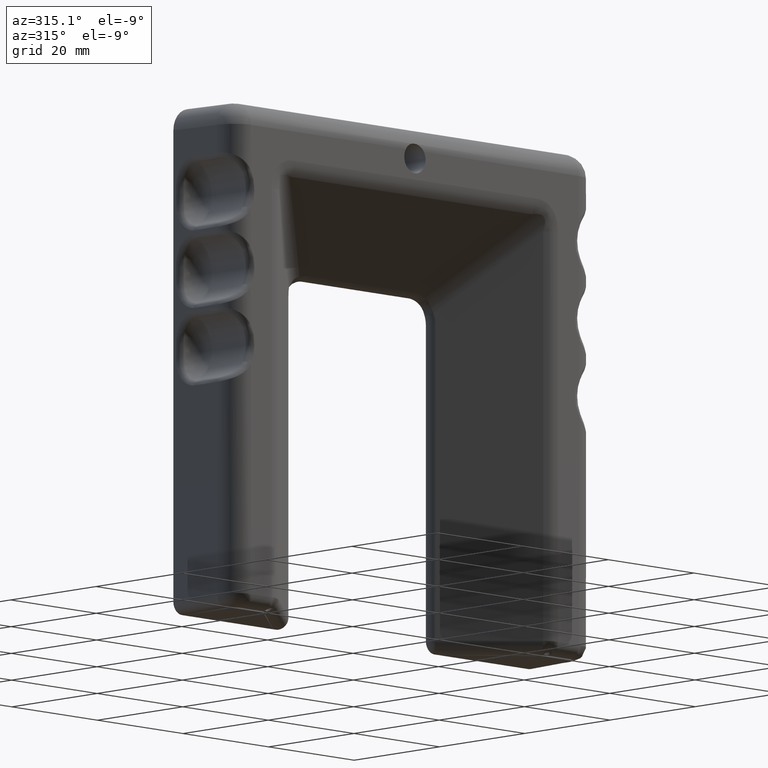
[diagram: clean part render]
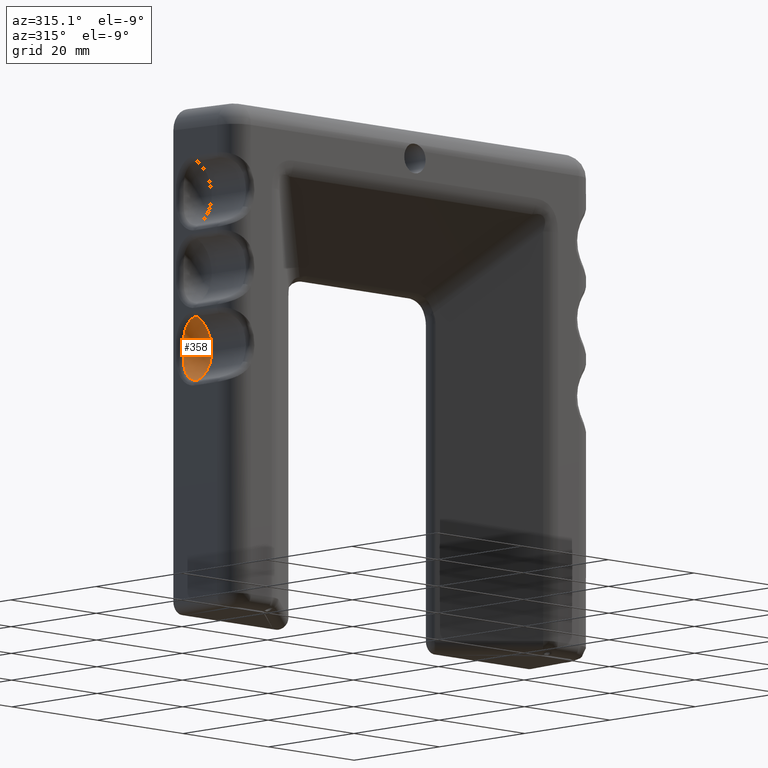
[diagram: same view with one face highlighted and labeled with its STEP entity id]
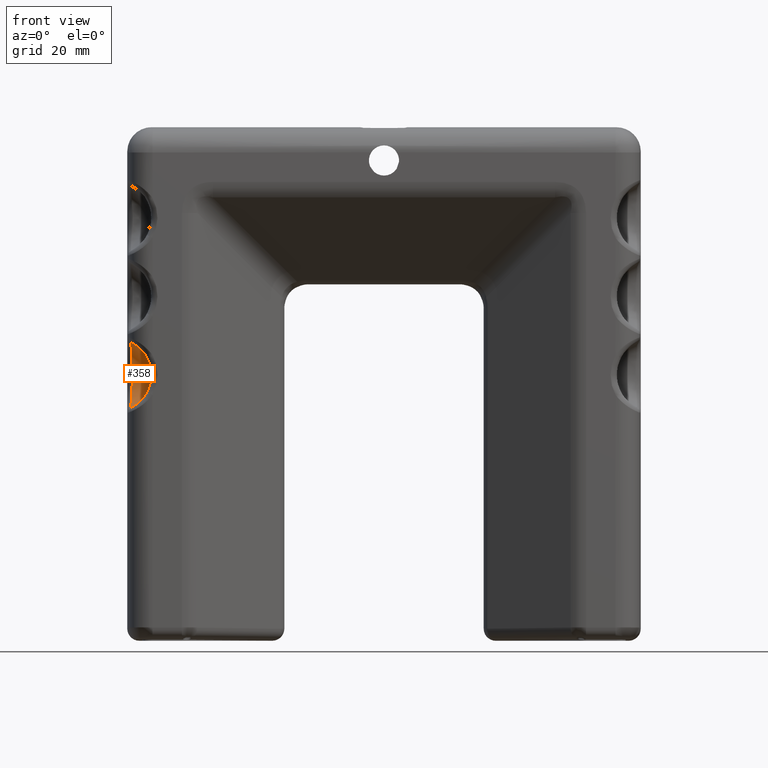
[diagram: same view with one face highlighted and labeled with its STEP entity id]
A machine part, auxiliary view. The second image highlights one B-rep face of the part: STEP entity #358.
A second angle (front view) of the same face is appended — the face is thin or edge-on in the first view.
In plain terms, the highlighted face is a freeform B-spline surface patch.
Its self-contained STEP definition (entity closure, byte-faithful):
#358=ADVANCED_FACE('',(#1437),#1436,.F.);
#1436=( BOUNDED_SURFACE() B_SPLINE_SURFACE( 2,2,((#6990,#6991,#6992,#6993,#6994),(#6995,#6996,#6997,#6998,#6999),(#7000,#7001,#7002,#7003,#7004),(#7005,#7006,#7007,#7008,#7009),(#7010,#7011,#7012,#7013,#7014)), .UNSPECIFIED.,.F.,.F.,.F.) B_SPLINE_SURFACE_WITH_KNOTS((3,2,3),(3,2,3),(-1.83817419509E-003,1.18228055304E+000,2.36639928028E+000),(0.00000000000E+000,1.34525889948E+000,2.69051779896E+000), .UNSPECIFIED. ) GEOMETRIC_REPRESENTATION_ITEM() RATIONAL_B_SPLINE_SURFACE(((1.00000000000E+000,7.82186106648E-001,1.00000000000E+000,7.82186106648E-001,1.00000000000E+000),(8.29793168260E-001,6.49052687605E-001,8.29793168260E-001,6.49052687605E-001,8.29793168260E-001),(1.00000000000E+000,7.82186106648E-001,1.00000000000E+000,7.82186106648E-001,1.00000000000E+000),(8.29793168260E-001,6.49052687605E-001,8.29793168260E-001,6.49052687605E-001,8.29793168260E-001),(1.00000000000E+000,7.82186106648E-001,1.00000000000E+000,7.82186106648E-001,1.00000000000E+000))) REPRESENTATION_ITEM('') SURFACE() );
#1437=FACE_OUTER_BOUND('',#7015,.T.);
#6990=CARTESIAN_POINT('',(-4.31582192279E+001,-5.50643360606E+000,-2.08480384240E+001));
#6991=CARTESIAN_POINT('',(-3.85000052354E+001,-5.50643360606E+000,-1.97792523603E+001));
#6992=CARTESIAN_POINT('',(-3.85000059130E+001,-5.50643360606E+000,-1.49999991498E+001));
#6993=CARTESIAN_POINT('',(-3.85000065906E+001,-5.50643360606E+000,-1.02207459392E+001));
#6994=CARTESIAN_POINT('',(-4.31582208862E+001,-5.50643360606E+000,-9.15196119643E+000));
#6995=CARTESIAN_POINT('',(-4.31572516079E+001,-3.15253934284E+000,-2.08522557143E+001));
#6996=CARTESIAN_POINT('',(-3.84956783623E+001,-3.15253934284E+000,-1.97826988997E+001));
#6997=CARTESIAN_POINT('',(-3.84956790404E+001,-3.15253934284E+000,-1.49999991492E+001));
#6998=CARTESIAN_POINT('',(-3.84956797185E+001,-3.15253934284E+000,-1.02172993986E+001));
#6999=CARTESIAN_POINT('',(-4.31572532674E+001,-3.15253934284E+000,-9.14774390583E+000));
#7000=CARTESIAN_POINT('',(-4.36444230957E+001,-2.26084685718E+000,-1.87289598384E+001));
#7001=CARTESIAN_POINT('',(-4.06741462889E+001,-2.26084685718E+000,-1.80474560557E+001));
#7002=CARTESIAN_POINT('',(-4.06741467210E+001,-2.26084685718E+000,-1.49999994580E+001));
#7003=CARTESIAN_POINT('',(-4.06741471531E+001,-2.26084685718E+000,-1.19525428603E+001));
#7004=CARTESIAN_POINT('',(-4.36444241531E+001,-2.26084685718E+000,-1.12710399199E+001));
#7005=CARTESIAN_POINT('',(-4.41315945835E+001,-1.36915437151E+000,-1.66056639625E+001));
#7006=CARTESIAN_POINT('',(-4.28526142155E+001,-1.36915437151E+000,-1.63122132118E+001));
#7007=CARTESIAN_POINT('',(-4.28526144015E+001,-1.36915437151E+000,-1.49999997669E+001));
#7008=CARTESIAN_POINT('',(-4.28526145876E+001,-1.36915437151E+000,-1.36877863220E+001));
#7009=CARTESIAN_POINT('',(-4.41315950389E+001,-1.36915437151E+000,-1.33943359340E+001));
#7010=CARTESIAN_POINT('',(-4.44999999999E+001,-3.05051025722E+000,-1.50000000005E+001));
#7011=CARTESIAN_POINT('',(-4.44999999999E+001,-3.05051025722E+000,-1.50000000005E+001));
#7012=CARTESIAN_POINT('',(-4.44999999999E+001,-3.05051025722E+000,-1.50000000005E+001));
#7013=CARTESIAN_POINT('',(-4.44999999999E+001,-3.05051025722E+000,-1.50000000005E+001));
#7014=CARTESIAN_POINT('',(-4.44999999999E+001,-3.05051025722E+000,-1.50000000005E+001));
#7015=EDGE_LOOP('',(#8381,#8382));
#8381=ORIENTED_EDGE('',*,*,#9190,.F.);
#8382=ORIENTED_EDGE('',*,*,#9267,.F.);
#9190=EDGE_CURVE('',#11075,#11060,#11082,.T.);
#9267=EDGE_CURVE('',#11060,#11075,#11588,.T.);
#11060=VERTEX_POINT('',#14294);
#11075=VERTEX_POINT('',#14319);
#11082=(BOUNDED_CURVE() B_SPLINE_CURVE(3,(#14324,#14325,#14326,#14327,#14328,#14329,#14330,#14331,#14332,#14333,#14334,#14335,#14336,#14337,#14338,#14339),.UNSPECIFIED.,.F.,.F.) B_SPLINE_CURVE_WITH_KNOTS((4,2,2,2,2,2,2,4),(0.00000000000E+000,1.25000000000E-001,2.50000000000E-001,3.75000000000E-001,5.00000000000E-001,7.50000000000E-001,8.75000000000E-001,1.00000000000E+000),.UNSPECIFIED.) CURVE() GEOMETRIC_REPRESENTATION_ITEM() RATIONAL_B_SPLINE_CURVE((1.00000000000E+000,1.00000000000E+000,1.00000000000E+000,1.00000000000E+000,1.00000000000E+000,1.00000000000E+000,1.00000000000E+000,1.00000000000E+000,1.00000000000E+000,1.00000000000E+000,1.00000000000E+000,1.00000000000E+000,1.00000000000E+000,1.00000000000E+000,1.00000000000E+000,1.00000000000E+000)) REPRESENTATION_ITEM('') );
#11588=CIRCLE('',#14667,6.00000000000E+000);
#14294=CARTESIAN_POINT('',(-4.18536334405E+001,-5.50000000000E+000,-9.61513751077E+000));
#14319=CARTESIAN_POINT('',(-4.18536334405E+001,-5.50000000000E+000,-2.03848624901E+001));
#14324=CARTESIAN_POINT('',(-4.18536334405E+001,-5.50000000000E+000,-2.03848624901E+001));
#14325=CARTESIAN_POINT('',(-4.18653636297E+001,-4.89020217667E+000,-2.03906272391E+001));
#14326=CARTESIAN_POINT('',(-4.18700763523E+001,-4.29231892139E+000,-2.02122583313E+001));
#14327=CARTESIAN_POINT('',(-4.18596939833E+001,-3.27957228801E+000,-1.95603537281E+001));
#14328=CARTESIAN_POINT('',(-4.18438588531E+001,-2.86848171497E+000,-1.90843059485E+001));
#14329=CARTESIAN_POINT('',(-4.17843670234E+001,-2.31923174195E+000,-1.80129299921E+001));
#14330=CARTESIAN_POINT('',(-4.17379759047E+001,-2.17498495437E+000,-1.74168131867E+001));
#14331=CARTESIAN_POINT('',(-4.16452191338E+001,-2.03237667903E+000,-1.62195709870E+001));
#14332=CARTESIAN_POINT('',(-4.16040924049E+001,-2.02263193169E+000,-1.56131106515E+001));
#14333=CARTESIAN_POINT('',(-4.16032556844E+001,-2.02222609055E+000,-1.37947982514E+001));
#14334=CARTESIAN_POINT('',(-4.17524074884E+001,-2.03482499303E+000,-1.25548981645E+001));
#14335=CARTESIAN_POINT('',(-4.18435534222E+001,-2.86045774802E+000,-1.09249672781E+001));
#14336=CARTESIAN_POINT('',(-4.18594120111E+001,-3.26861533004E+000,-1.04497696860E+001));
#14337=CARTESIAN_POINT('',(-4.18701213641E+001,-4.28052875342E+000,-9.79232874166E+000));
#14338=CARTESIAN_POINT('',(-4.18654383832E+001,-4.88631609269E+000,-9.60933602454E+000));
#14339=CARTESIAN_POINT('',(-4.18536334405E+001,-5.50000000000E+000,-9.61513751077E+000));
#14664=CARTESIAN_POINT('',(-4.44999999999E+001,-5.50000000000E+000,-1.50000000005E+001));
#14665=DIRECTION('',(-0.00000000000E+000,1.00000000000E+000,0.00000000000E+000));
#14666=DIRECTION('',(-4.41061093248E-001,-0.00000000000E+000,-8.97477081614E-001));
#14667=AXIS2_PLACEMENT_3D('',#14664,#14665,#14666);